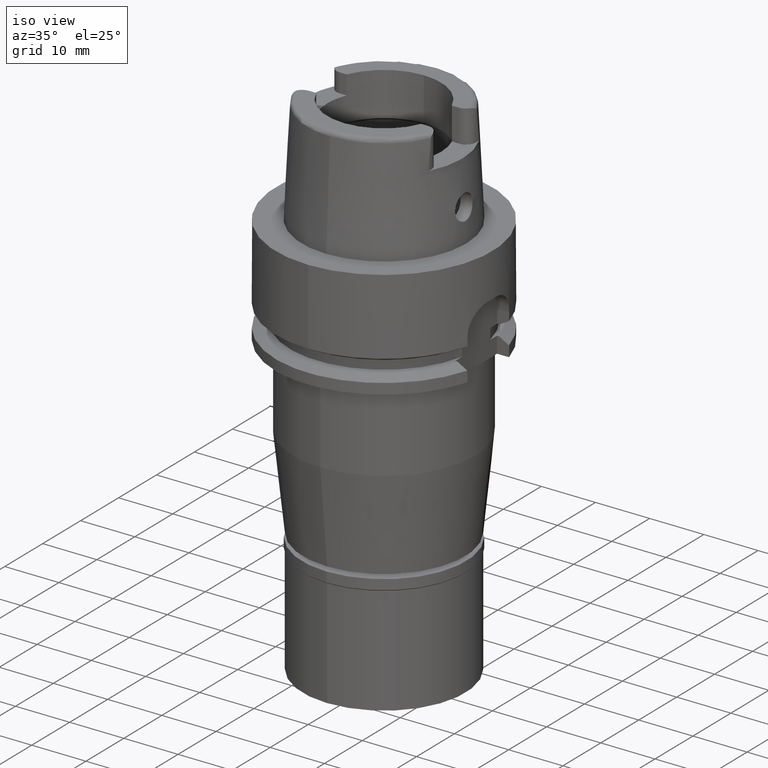
[diagram: clean part render]
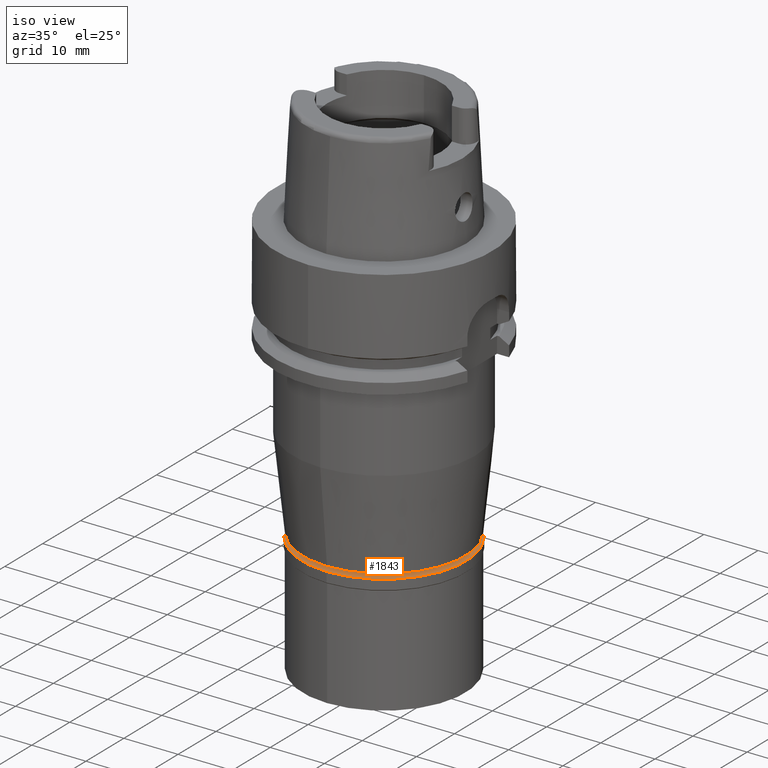
[diagram: same view with one face highlighted and labeled with its STEP entity id]
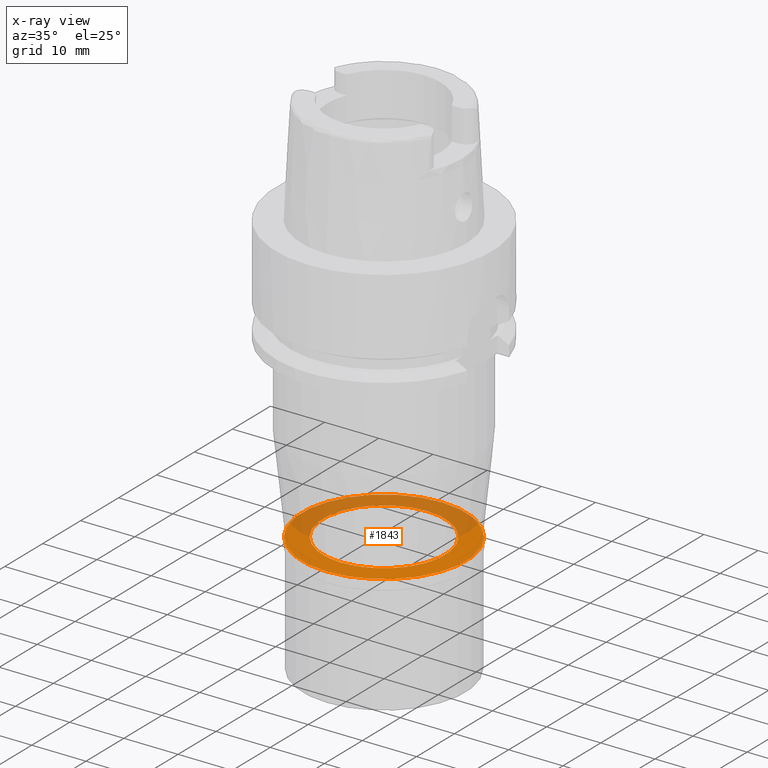
[diagram: x-ray of the same camera — body ghosted, the highlighted face saturated]
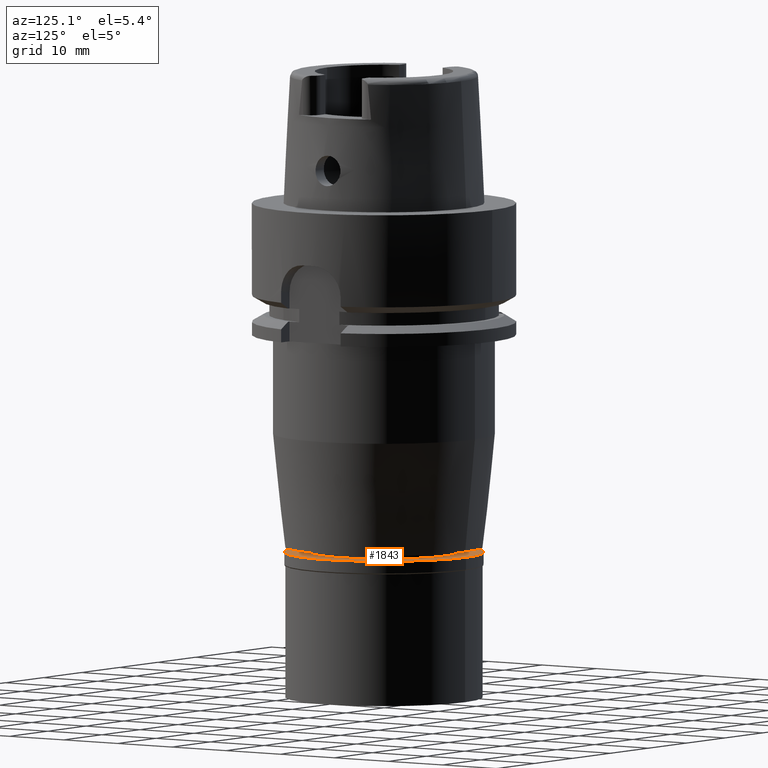
[diagram: same view with one face highlighted and labeled with its STEP entity id]
A machine part, iso view. The second image highlights one B-rep face of the part: STEP entity #1843.
The next image is the same camera in x-ray: the body ghosted, the highlighted face saturated — about 45% of this face is hidden behind the body in this view.
A second angle (auxiliary view) of the same face is appended — the face is thin or edge-on in the first view.
In plain terms, the highlighted planar face has unit normal (0, 0, -1).
Its self-contained STEP definition (entity closure, byte-faithful):
#173 = AXIS2_PLACEMENT_3D ( 'NONE', #309, #2752, #335 ) ;
#212 = DIRECTION ( 'NONE',  ( 0.0000000000000000000, 0.0000000000000000000, 1.000000000000000000 ) ) ;
#262 = EDGE_LOOP ( 'NONE', ( #2636, #769 ) ) ;
#267 = EDGE_LOOP ( 'NONE', ( #3178, #4313 ) ) ;
#309 = CARTESIAN_POINT ( 'NONE',  ( 0.0000000000000000000, 0.0000000000000000000, 0.0000000000000000000 ) ) ;
#335 = DIRECTION ( 'NONE',  ( 0.0000000000000000000, -1.000000000000000000, 0.0000000000000000000 ) ) ;
#388 = FACE_OUTER_BOUND ( 'NONE', #262, .T. ) ;
#412 = VERTEX_POINT ( 'NONE', #1802 ) ;
#522 = AXIS2_PLACEMENT_3D ( 'NONE', #596, #212, #1359 ) ;
#558 = CARTESIAN_POINT ( 'NONE',  ( 0.0000000000000000000, -15.15000000000000036, 0.0000000000000000000 ) ) ;
#596 = CARTESIAN_POINT ( 'NONE',  ( 0.0000000000000000000, 0.0000000000000000000, 0.0000000000000000000 ) ) ;
#627 = DIRECTION ( 'NONE',  ( 0.0000000000000000000, 0.0000000000000000000, -1.000000000000000000 ) ) ;
#769 = ORIENTED_EDGE ( 'NONE', *, *, #2269, .F. ) ;
#1128 = CIRCLE ( 'NONE', #3130, 15.15000000000000036 ) ;
#1301 = CARTESIAN_POINT ( 'NONE',  ( 0.0000000000000000000, 11.25000000000000000, 0.0000000000000000000 ) ) ;
#1359 = DIRECTION ( 'NONE',  ( 0.0000000000000000000, -1.000000000000000000, 0.0000000000000000000 ) ) ;
#1363 = CARTESIAN_POINT ( 'NONE',  ( 0.0000000000000000000, 0.0000000000000000000, 0.0000000000000000000 ) ) ;
#1802 = CARTESIAN_POINT ( 'NONE',  ( 0.0000000000000000000, 15.15000000000000036, 0.0000000000000000000 ) ) ;
#1843 = ADVANCED_FACE ( 'NONE', ( #388, #3302 ), #1937, .F. ) ;
#1927 = DIRECTION ( 'NONE',  ( 0.0000000000000000000, 1.000000000000000000, 0.0000000000000000000 ) ) ;
#1937 = PLANE ( 'NONE',  #173 ) ;
#2258 = AXIS2_PLACEMENT_3D ( 'NONE', #4908, #5303, #1927 ) ;
#2269 = EDGE_CURVE ( 'NONE', #4966, #412, #1128, .T. ) ;
#2429 = EDGE_CURVE ( 'NONE', #3127, #2619, #4252, .T. ) ;
#2591 = CARTESIAN_POINT ( 'NONE',  ( 0.0000000000000000000, 0.0000000000000000000, 0.0000000000000000000 ) ) ;
#2619 = VERTEX_POINT ( 'NONE', #4503 ) ;
#2636 = ORIENTED_EDGE ( 'NONE', *, *, #3613, .F. ) ;
#2752 = DIRECTION ( 'NONE',  ( 0.0000000000000000000, 0.0000000000000000000, -1.000000000000000000 ) ) ;
#3042 = CIRCLE ( 'NONE', #3731, 15.15000000000000036 ) ;
#3127 = VERTEX_POINT ( 'NONE', #1301 ) ;
#3130 = AXIS2_PLACEMENT_3D ( 'NONE', #1363, #627, #4754 ) ;
#3178 = ORIENTED_EDGE ( 'NONE', *, *, #2429, .F. ) ;
#3302 = FACE_BOUND ( 'NONE', #267, .T. ) ;
#3613 = EDGE_CURVE ( 'NONE', #412, #4966, #3042, .T. ) ;
#3731 = AXIS2_PLACEMENT_3D ( 'NONE', #2591, #4247, #4677 ) ;
#4151 = EDGE_CURVE ( 'NONE', #2619, #3127, #5208, .T. ) ;
#4247 = DIRECTION ( 'NONE',  ( 0.0000000000000000000, 0.0000000000000000000, -1.000000000000000000 ) ) ;
#4252 = CIRCLE ( 'NONE', #2258, 11.25000000000000000 ) ;
#4313 = ORIENTED_EDGE ( 'NONE', *, *, #4151, .F. ) ;
#4503 = CARTESIAN_POINT ( 'NONE',  ( 0.0000000000000000000, -11.25000000000000000, 0.0000000000000000000 ) ) ;
#4677 = DIRECTION ( 'NONE',  ( 0.0000000000000000000, 1.000000000000000000, 0.0000000000000000000 ) ) ;
#4754 = DIRECTION ( 'NONE',  ( 0.0000000000000000000, -1.000000000000000000, 0.0000000000000000000 ) ) ;
#4908 = CARTESIAN_POINT ( 'NONE',  ( 0.0000000000000000000, 0.0000000000000000000, 0.0000000000000000000 ) ) ;
#4966 = VERTEX_POINT ( 'NONE', #558 ) ;
#5208 = CIRCLE ( 'NONE', #522, 11.25000000000000000 ) ;
#5303 = DIRECTION ( 'NONE',  ( 0.0000000000000000000, 0.0000000000000000000, 1.000000000000000000 ) ) ;